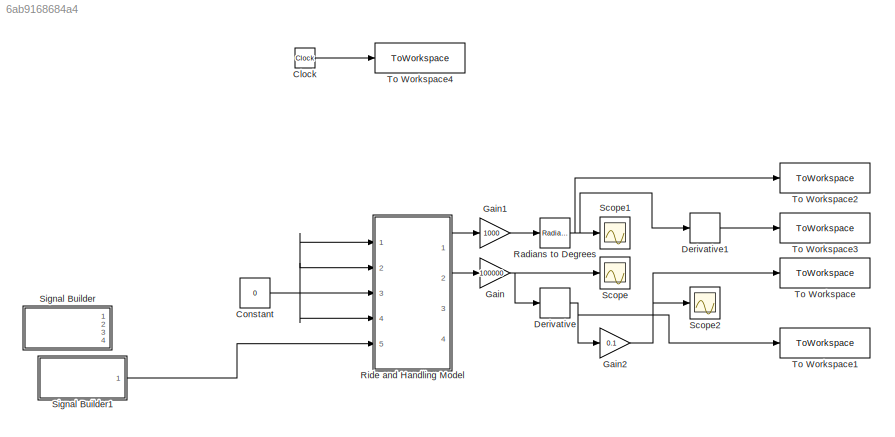
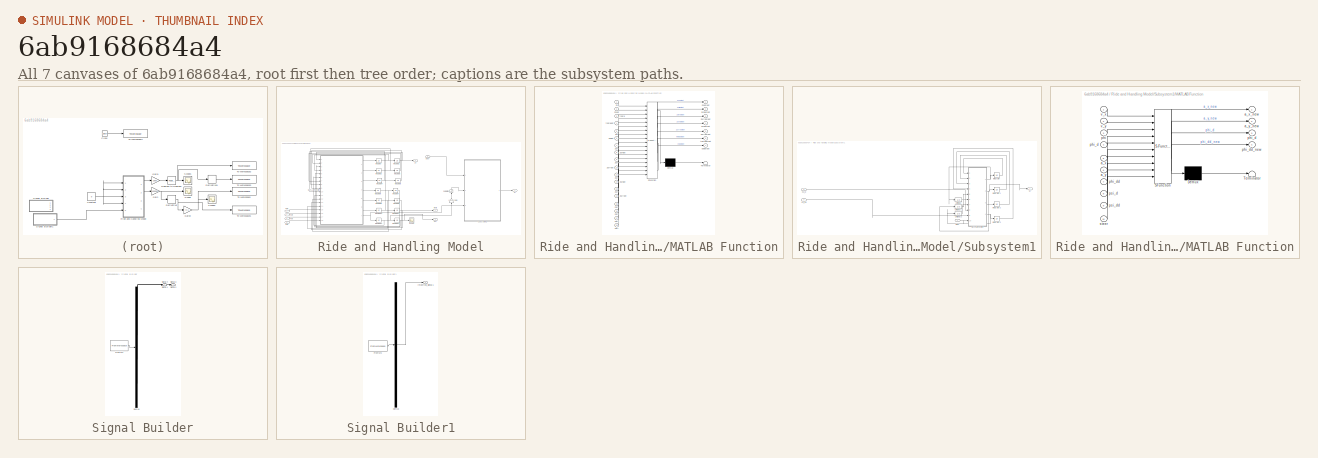
[diagram: thumbnail index - all 7 canvases of the model, root first then tree order]
MODEL slx_6ab9168684a4
KIND model
CONFIG AbsTol = auto
CONFIG EnableMultiTasking = off
CONFIG FixedStep = auto
CONFIG MaxStep = auto
CONFIG MinStep = auto
CONFIG RelTol = 1e-3
CONFIG SampleTimeConstraint = Unconstrained
CONFIG SolverName = VariableStepAuto
CONFIG StartTime = 0.0
CONFIG StopTime = 10.0
BLOCK [Clock] Clock
BLOCK [Constant] Constant
  Value = 0
BLOCK [Derivative] Derivative
BLOCK [Derivative] Derivative1
BLOCK [Gain] Gain
  Gain = 100000
BLOCK [Gain] Gain1
  Gain = 1000
BLOCK [Gain] Gain2
  Gain = 0.1
BLOCK [Reference] Radians to Degrees  REF=simulink_extras/Transformations/Radians
to Degrees
  Ports = [1, 1]
  SourceBlock = simulink_extras/Transformations/Radians\nto Degrees
  SourceProductBaseCode = SL
  SourceType = RadiansToDegrees
BLOCK [SubSystem] Ride and Handling Model
  Ports = [5, 4]
  RequestExecContextInheritance = off
BLOCK [Inport] Ride and Handling Model/Fpfl
BLOCK [Inport] Ride and Handling Model/Fpfr
  Port = 3
BLOCK [Inport] Ride and Handling Model/Fprl
  Port = 2
BLOCK [Inport] Ride and Handling Model/Fprr
  Port = 4
BLOCK [Gain] Ride and Handling Model/Gain
  Gain = 100000
  NameLocation = right
BLOCK [Integrator] Ride and Handling Model/Integrator
  InitialCondition = 0.0001
  Ports = [1, 1]
BLOCK [Integrator] Ride and Handling Model/Integrator1
  InitialCondition = 0.0001
  Ports = [1, 1]
BLOCK [Integrator] Ride and Handling Model/Integrator10
  InitialCondition = 0.0001
  Ports = [1, 1]
BLOCK [Integrator] Ride and Handling Model/Integrator11
  InitialCondition = 0.0001
  Ports = [1, 1]
BLOCK [Integrator] Ride and Handling Model/Integrator12
  InitialCondition = 0.0001
  Ports = [1, 1]
BLOCK [Integrator] Ride and Handling Model/Integrator13
  InitialCondition = 0.0001
  Ports = [1, 1]
BLOCK [Integrator] Ride and Handling Model/Integrator2
  InitialCondition = 0.0001
  Ports = [1, 1]
BLOCK [Integrator] Ride and Handling Model/Integrator3
  InitialCondition = 0.0001
  Ports = [1, 1]
BLOCK [Integrator] Ride and Handling Model/Integrator4
  InitialCondition = 0.0001
  Ports = [1, 1]
BLOCK [Integrator] Ride and Handling Model/Integrator5
  InitialCondition = 0.0001
  Ports = [1, 1]
BLOCK [Integrator] Ride and Handling Model/Integrator6
  InitialCondition = 0.0001
  Ports = [1, 1]
BLOCK [Integrator] Ride and Handling Model/Integrator7
  InitialCondition = 0.0001
  Ports = [1, 1]
BLOCK [Integrator] Ride and Handling Model/Integrator8
  InitialCondition = 0.0001
  Ports = [1, 1]
BLOCK [Integrator] Ride and Handling Model/Integrator9
  InitialCondition = 0.0001
  Ports = [1, 1]
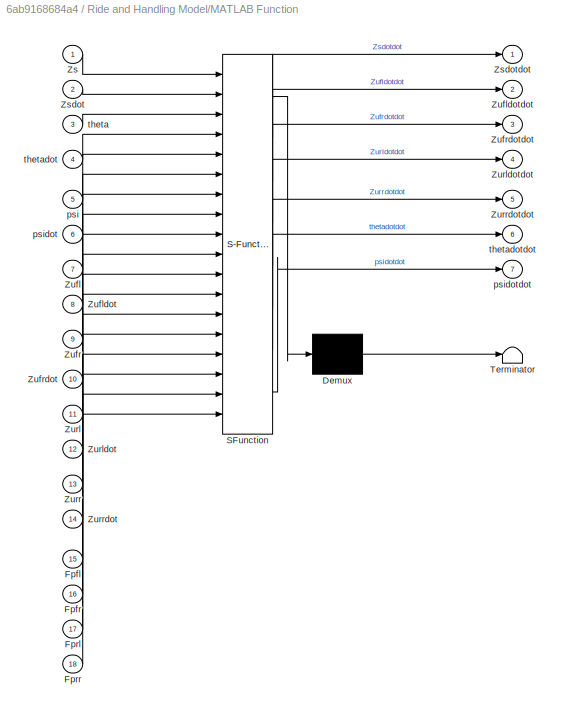
BLOCK [SubSystem] Ride and Handling Model/MATLAB Function
  ErrorFcn = Stateflow.Translate.translate
  PermitHierarchicalResolution = ExplicitOnly
  Ports = [18, 7]
  RequestExecContextInheritance = off
  SFBlockType = MATLAB Function
  TreatAsAtomicUnit = on
BLOCK [Demux] Ride and Handling Model/MATLAB Function/ Demux 
  Outputs = 1
  Ports = [1, 1]
BLOCK [S-Function] Ride and Handling Model/MATLAB Function/ SFunction 
  EnableBusSupport = on
  FunctionName = sf_sfun
  PortCounts = [18 8]
  Ports = [18, 8]
  SFcnIsStateOwnerBlock = off
  SFunctionDeploymentMode = off
  Tag = Stateflow S-Function 2
BLOCK [Terminator] Ride and Handling Model/MATLAB Function/ Terminator 
BLOCK [Inport] Ride and Handling Model/MATLAB Function/Fpfl
  Port = 15
BLOCK [Inport] Ride and Handling Model/MATLAB Function/Fpfr
  Port = 16
BLOCK [Inport] Ride and Handling Model/MATLAB Function/Fprl
  Port = 17
BLOCK [Inport] Ride and Handling Model/MATLAB Function/Fprr
  Port = 18
BLOCK [Inport] Ride and Handling Model/MATLAB Function/Zs
BLOCK [Inport] Ride and Handling Model/MATLAB Function/Zsdot
  Port = 2
BLOCK [Outport] Ride and Handling Model/MATLAB Function/Zsdotdot
BLOCK [Inport] Ride and Handling Model/MATLAB Function/Zufl
  Port = 7
BLOCK [Inport] Ride and Handling Model/MATLAB Function/Zufldot
  Port = 8
BLOCK [Outport] Ride and Handling Model/MATLAB Function/Zufldotdot
  Port = 2
BLOCK [Inport] Ride and Handling Model/MATLAB Function/Zufr
  Port = 9
BLOCK [Inport] Ride and Handling Model/MATLAB Function/Zufrdot
  Port = 10
BLOCK [Outport] Ride and Handling Model/MATLAB Function/Zufrdotdot
  Port = 3
BLOCK [Inport] Ride and Handling Model/MATLAB Function/Zurl
  Port = 11
BLOCK [Inport] Ride and Handling Model/MATLAB Function/Zurldot
  Port = 12
BLOCK [Outport] Ride and Handling Model/MATLAB Function/Zurldotdot
  Port = 4
BLOCK [Inport] Ride and Handling Model/MATLAB Function/Zurr
  Port = 13
BLOCK [Inport] Ride and Handling Model/MATLAB Function/Zurrdot
  Port = 14
BLOCK [Outport] Ride and Handling Model/MATLAB Function/Zurrdotdot
  Port = 5
BLOCK [Inport] Ride and Handling Model/MATLAB Function/psi
  Port = 5
BLOCK [Inport] Ride and Handling Model/MATLAB Function/psidot
  Port = 6
BLOCK [Outport] Ride and Handling Model/MATLAB Function/psidotdot
  Port = 7
BLOCK [Inport] Ride and Handling Model/MATLAB Function/theta
  Port = 3
BLOCK [Inport] Ride and Handling Model/MATLAB Function/thetadot
  Port = 4
BLOCK [Outport] Ride and Handling Model/MATLAB Function/thetadotdot
  Port = 6
BLOCK [Saturate] Ride and Handling Model/Saturation
  LowerLimit = -1
  NameLocation = right
  UpperLimit = 10
BLOCK [Scope] Ride and Handling Model/Scope
  Floating = off
  NumInputPorts = 1
  Ports = [1]
  ScopeSpecificationString = Simulink.scopes.TimeScopeBlockCfg('CurrentConfiguration', extmgr.ConfigurationSet(extmgr.Configuration('Core','General UI',true),extmgr.Configuration('Core','Source UI',true),extmgr.Configuration('Sources','WiredSimulink',true),extmgr.Configuration('Visuals','Time Domain',true,'SerializedDisplays',{struct('MinYLimReal','-0.48113','MaxYLimReal','0.65572','YLabelReal','','MinYLimMag','0.00000','MaxY...<+1357ch>
BLOCK [SubSystem] Ride and Handling Model/Subsystem1
  Ports = [3, 1]
  RequestExecContextInheritance = off
BLOCK [Integrator] Ride and Handling Model/Subsystem1/Integrator
  InitialCondition = 0.0001
  Ports = [1, 1]
BLOCK [Integrator] Ride and Handling Model/Subsystem1/Integrator1
  InitialCondition = 0.0001
  Ports = [1, 1]
BLOCK [Integrator] Ride and Handling Model/Subsystem1/Integrator2
  InitialCondition = 0.0001
  Ports = [1, 1]
BLOCK [Integrator] Ride and Handling Model/Subsystem1/Integrator3
  InitialCondition = 0.0001
  Ports = [1, 1]
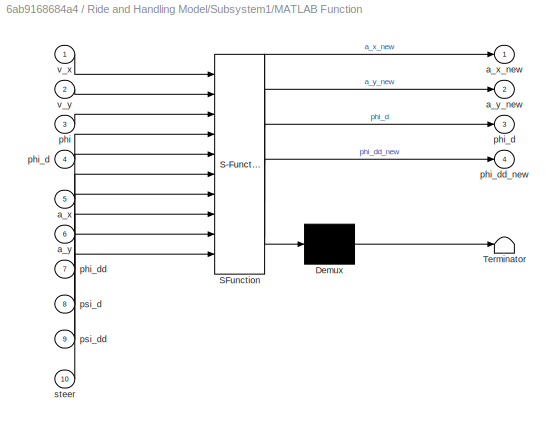
BLOCK [SubSystem] Ride and Handling Model/Subsystem1/MATLAB Function
  ErrorFcn = Stateflow.Translate.translate
  PermitHierarchicalResolution = ExplicitOnly
  Ports = [10, 4]
  RequestExecContextInheritance = off
  SFBlockType = MATLAB Function
  TreatAsAtomicUnit = on
BLOCK [Demux] Ride and Handling Model/Subsystem1/MATLAB Function/ Demux 
  Outputs = 1
  Ports = [1, 1]
BLOCK [S-Function] Ride and Handling Model/Subsystem1/MATLAB Function/ SFunction 
  EnableBusSupport = on
  FunctionName = sf_sfun
  PortCounts = [10 5]
  Ports = [10, 5]
  SFcnIsStateOwnerBlock = off
  SFunctionDeploymentMode = off
  Tag = Stateflow S-Function 4
BLOCK [Terminator] Ride and Handling Model/Subsystem1/MATLAB Function/ Terminator 
BLOCK [Inport] Ride and Handling Model/Subsystem1/MATLAB Function/a_x
  Port = 5
BLOCK [Outport] Ride and Handling Model/Subsystem1/MATLAB Function/a_x_new
BLOCK [Inport] Ride and Handling Model/Subsystem1/MATLAB Function/a_y
  Port = 6
BLOCK [Outport] Ride and Handling Model/Subsystem1/MATLAB Function/a_y_new
  Port = 2
BLOCK [Inport] Ride and Handling Model/Subsystem1/MATLAB Function/phi
  Port = 3
BLOCK [Outport] Ride and Handling Model/Subsystem1/MATLAB Function/phi_d
  Port = 3
BLOCK [Inport] Ride and Handling Model/Subsystem1/MATLAB Function/phi_d 
  Port = 4
BLOCK [Inport] Ride and Handling Model/Subsystem1/MATLAB Function/phi_dd
  Port = 7
BLOCK [Outport] Ride and Handling Model/Subsystem1/MATLAB Function/phi_dd_new
  Port = 4
BLOCK [Inport] Ride and Handling Model/Subsystem1/MATLAB Function/psi_d
  Port = 8
BLOCK [Inport] Ride and Handling Model/Subsystem1/MATLAB Function/psi_dd
  Port = 9
BLOCK [Inport] Ride and Handling Model/Subsystem1/MATLAB Function/steer
  Port = 10
BLOCK [Inport] Ride and Handling Model/Subsystem1/MATLAB Function/v_x
BLOCK [Inport] Ride and Handling Model/Subsystem1/MATLAB Function/v_y
  Port = 2
BLOCK [UnitDelay] Ride and Handling Model/Subsystem1/Unit Delay
  HasFrameUpgradeWarning = on
  SampleTime = -1
BLOCK [UnitDelay] Ride and Handling Model/Subsystem1/Unit Delay1
  HasFrameUpgradeWarning = on
  SampleTime = -1
BLOCK [UnitDelay] Ride and Handling Model/Subsystem1/Unit Delay2
  HasFrameUpgradeWarning = on
  SampleTime = -1
BLOCK [Outport] Ride and Handling Model/Subsystem1/ay
BLOCK [Inport] Ride and Handling Model/Subsystem1/psi_d
  Port = 2
BLOCK [Inport] Ride and Handling Model/Subsystem1/psi_dd
  Port = 3
BLOCK [Inport] Ride and Handling Model/Subsystem1/steer
BLOCK [Outport] Ride and Handling Model/Zs
  Port = 4
BLOCK [Outport] Ride and Handling Model/ay
  Port = 3
BLOCK [Outport] Ride and Handling Model/psi
  Port = 2
BLOCK [Inport] Ride and Handling Model/steer
  Port = 5
BLOCK [Outport] Ride and Handling Model/theta
BLOCK [Scope] Scope
  Floating = off
  NumInputPorts = 1
  Ports = [1]
  ScopeSpecificationString = Simulink.scopes.TimeScopeBlockCfg('CurrentConfiguration', extmgr.ConfigurationSet(extmgr.Configuration('Core','General UI',true),extmgr.Configuration('Core','Source UI',true),extmgr.Configuration('Sources','WiredSimulink',true,'DataLoggingVariableName','ScopeData1'),extmgr.Configuration('Visuals','Time Domain',true,'SerializedDisplays',{struct('MinYLimReal','-6.29966','MaxYLimReal','11.84491','YLa...<+1396ch>
BLOCK [Scope] Scope1
  Floating = off
  NumInputPorts = 1
  Ports = [1]
  ScopeSpecificationString = Simulink.scopes.TimeScopeBlockCfg('CurrentConfiguration', extmgr.ConfigurationSet(extmgr.Configuration('Core','General UI',true),extmgr.Configuration('Core','Source UI',true),extmgr.Configuration('Sources','WiredSimulink',true,'DataLoggingVariableName','ScopeData2'),extmgr.Configuration('Visuals','Time Domain',true,'SerializedDisplays',{struct('MinYLimReal','-5.93913','MaxYLimReal','7.06003','YLab...<+1406ch>
BLOCK [Scope] Scope2
  Floating = off
  NumInputPorts = 1
  Ports = [1]
  ScopeSpecificationString = Simulink.scopes.TimeScopeBlockCfg('CurrentConfiguration', extmgr.ConfigurationSet(extmgr.Configuration('Core','General UI',true),extmgr.Configuration('Core','Source UI',true),extmgr.Configuration('Sources','WiredSimulink',true,'DataLoggingVariableName','ScopeData3'),extmgr.Configuration('Visuals','Time Domain',true,'SerializedDisplays',{struct('MinYLimReal','-11.1759','MaxYLimReal','5.87301','YLab...<+1393ch>
BLOCK [SubSystem] Signal Builder
  ClipboardFcn = sigbuilder_block('clipboard');
  CloseFcn = sigbuilder_block('close');
  ContinueFcn = sigbuilder_block('continue');
  CopyFcn = sigbuilder_block('copy');
  DeleteFcn = sigbuilder_block('delete');
  LoadFcn = sigbuilder_block('load');
  MaskHideContents = on
  ModelCloseFcn = sigbuilder_block('modelClose');
  NameChangeFcn = sigbuilder_block('namechange');
  OpenFcn = sigbuilder_block('open',[5.4 36 1141.2 516.6 ]);
  PauseFcn = sigbuilder_block('pause');
  Ports = [0, 4]
  PreSaveFcn = sigbuilder_block('preSave');
  RequestExecContextInheritance = off
  StartFcn = sigbuilder_block('start');
  StopFcn = sigbuilder_block('stop');
  Tag = STV Subsys
BLOCK [Demux] Signal Builder/Demux
  DisplayOption = none
  Ports = [1, 4]
  Tag = STV Demux
BLOCK [FromWorkspace] Signal Builder/FromWs
  Tag = STV FromWs
  VariableName = tuvar
BLOCK [Outport] Signal Builder/Signal 1
  Tag = STV Outport
BLOCK [Outport] Signal Builder/Signal 2
  Port = 2
  Tag = STV Outport
BLOCK [Outport] Signal Builder/Signal 3
  Port = 3
  Tag = STV Outport
BLOCK [Outport] Signal Builder/Signal 4
  Port = 4
  Tag = STV Outport
BLOCK [SubSystem] Signal Builder1
  ClipboardFcn = sigbuilder_block('clipboard');
  CloseFcn = sigbuilder_block('close');
  ContinueFcn = sigbuilder_block('continue');
  CopyFcn = sigbuilder_block('copy');
  DeleteFcn = sigbuilder_block('delete');
  LoadFcn = sigbuilder_block('load');
  MaskHideContents = on
  ModelCloseFcn = sigbuilder_block('modelClose');
  NameChangeFcn = sigbuilder_block('namechange');
  OpenFcn = sigbuilder_block('open',[405.6 130.2 550.8 400.2 ]);
  PauseFcn = sigbuilder_block('pause');
  Ports = [0, 1]
  PreSaveFcn = sigbuilder_block('preSave');
  RequestExecContextInheritance = off
  StartFcn = sigbuilder_block('start');
  StopFcn = sigbuilder_block('stop');
  Tag = STV Subsys
BLOCK [Demux] Signal Builder1/Demux
  DisplayOption = none
  Outputs = 1
  Ports = [1, 1]
  Tag = STV Demux
BLOCK [FromWorkspace] Signal Builder1/FromWs
  Tag = STV FromWs
  VariableName = tuvar
BLOCK [Outport] Signal Builder1/Imported_Signal 1
  Tag = STV Outport
BLOCK [ToWorkspace] To Workspace
  FixptAsFi = on
  MaxDataPoints = inf
  Ports = [1]
  SampleTime = -1
  SaveFormat = Timeseries
  VariableName = roll
BLOCK [ToWorkspace] To Workspace1
  FixptAsFi = on
  MaxDataPoints = inf
  Ports = [1]
  SampleTime = -1
  SaveFormat = Timeseries
  VariableName = rollrate
BLOCK [ToWorkspace] To Workspace2
  FixptAsFi = on
  MaxDataPoints = inf
  Ports = [1]
  SampleTime = -1
  SaveFormat = Timeseries
  VariableName = pitch
BLOCK [ToWorkspace] To Workspace3
  FixptAsFi = on
  MaxDataPoints = inf
  Ports = [1]
  SampleTime = -1
  SaveFormat = Timeseries
  VariableName = pitchrate
BLOCK [ToWorkspace] To Workspace4
  FixptAsFi = on
  MaxDataPoints = inf
  Ports = [1]
  SampleTime = -1
  SaveFormat = Timeseries
  VariableName = time1
LINE Clock:1 -> To Workspace4:1
NET Constant:1 -> Ride and Handling Model:1, Ride and Handling Model:2, Ride and Handling Model:3, Ride and Handling Model:4
LINE Derivative1:1 -> To Workspace3:1
NET Derivative:1 -> Gain2:1, To Workspace1:1
LINE Gain1:1 -> Radians to Degrees:1
NET Gain2:1 -> Scope2:1, To Workspace:1
NET Gain:1 -> Derivative:1, Scope:1
NET Radians to Degrees:1 -> Derivative1:1, Scope1:1, To Workspace2:1
LINE Ride and Handling Model/Fpfl:1 -> Ride and Handling Model/MATLAB Function:15
LINE Ride and Handling Model/Fpfr:1 -> Ride and Handling Model/MATLAB Function:16
LINE Ride and Handling Model/Fprl:1 -> Ride and Handling Model/MATLAB Function:17
LINE Ride and Handling Model/Fprr:1 -> Ride and Handling Model/MATLAB Function:18
LINE Ride and Handling Model/Gain:1 -> Ride and Handling Model/Saturation:1
NET Ride and Handling Model/Integrator10:1 -> Ride and Handling Model/Integrator11:1, Ride and Handling Model/MATLAB Function:4
NET Ride and Handling Model/Integrator11:1 -> Ride and Handling Model/MATLAB Function:3, Ride and Handling Model/theta:1
NET Ride and Handling Model/Integrator12:1 -> Ride and Handling Model/Gain:1, Ride and Handling Model/Integrator13:1, Ride and Handling Model/MATLAB Function:6
NET Ride and Handling Model/Integrator13:1 -> Ride and Handling Model/MATLAB Function:5, Ride and Handling Model/Scope:1, Ride and Handling Model/psi:1
NET Ride and Handling Model/Integrator1:1 -> Ride and Handling Model/MATLAB Function:1, Ride and Handling Model/Zs:1
NET Ride and Handling Model/Integrator2:1 -> Ride and Handling Model/Integrator3:1, Ride and Handling Model/MATLAB Function:8
LINE Ride and Handling Model/Integrator3:1 -> Ride and Handling Model/MATLAB Function:7
NET Ride and Handling Model/Integrator4:1 -> Ride and Handling Model/Integrator5:1, Ride and Handling Model/MATLAB Function:10
LINE Ride and Handling Model/Integrator5:1 -> Ride and Handling Model/MATLAB Function:9
NET Ride and Handling Model/Integrator6:1 -> Ride and Handling Model/Integrator7:1, Ride and Handling Model/MATLAB Function:12
LINE Ride and Handling Model/Integrator7:1 -> Ride and Handling Model/MATLAB Function:11
NET Ride and Handling Model/Integrator8:1 -> Ride and Handling Model/Integrator9:1, Ride and Handling Model/MATLAB Function:14
LINE Ride and Handling Model/Integrator9:1 -> Ride and Handling Model/MATLAB Function:13
NET Ride and Handling Model/Integrator:1 -> Ride and Handling Model/Integrator1:1, Ride and Handling Model/MATLAB Function:2
LINE Ride and Handling Model/MATLAB Function:1 -> Ride and Handling Model/Integrator:1
LINE Ride and Handling Model/MATLAB Function:2 -> Ride and Handling Model/Integrator2:1
LINE Ride and Handling Model/MATLAB Function:3 -> Ride and Handling Model/Integrator4:1
LINE Ride and Handling Model/MATLAB Function:4 -> Ride and Handling Model/Integrator6:1
LINE Ride and Handling Model/MATLAB Function:5 -> Ride and Handling Model/Integrator8:1
LINE Ride and Handling Model/MATLAB Function:6 -> Ride and Handling Model/Integrator10:1
NET Ride and Handling Model/MATLAB Function:7 -> Ride and Handling Model/Integrator12:1, Ride and Handling Model/Subsystem1:3
LINE Ride and Handling Model/Saturation:1 -> Ride and Handling Model/Subsystem1:2
LINE Ride and Handling Model/Subsystem1/Integrator1:1 -> Ride and Handling Model/Subsystem1/MATLAB Function:2
LINE Ride and Handling Model/Subsystem1/Integrator2:1 -> Ride and Handling Model/Subsystem1/MATLAB Function:3
LINE Ride and Handling Model/Subsystem1/Integrator3:1 -> Ride and Handling Model/Subsystem1/MATLAB Function:4
LINE Ride and Handling Model/Subsystem1/Integrator:1 -> Ride and Handling Model/Subsystem1/MATLAB Function:1
NET Ride and Handling Model/Subsystem1/MATLAB Function:1 -> Ride and Handling Model/Subsystem1/Integrator:1, Ride and Handling Model/Subsystem1/Unit Delay:1
NET Ride and Handling Model/Subsystem1/MATLAB Function:2 -> Ride and Handling Model/Subsystem1/Integrator1:1, Ride and Handling Model/Subsystem1/Unit Delay1:1, Ride and Handling Model/Subsystem1/ay:1
LINE Ride and Handling Model/Subsystem1/MATLAB Function:3 -> Ride and Handling Model/Subsystem1/Integrator2:1
NET Ride and Handling Model/Subsystem1/MATLAB Function:4 -> Ride and Handling Model/Subsystem1/Integrator3:1, Ride and Handling Model/Subsystem1/Unit Delay2:1
LINE Ride and Handling Model/Subsystem1/Unit Delay1:1 -> Ride and Handling Model/Subsystem1/MATLAB Function:6
LINE Ride and Handling Model/Subsystem1/Unit Delay2:1 -> Ride and Handling Model/Subsystem1/MATLAB Function:7
LINE Ride and Handling Model/Subsystem1/Unit Delay:1 -> Ride and Handling Model/Subsystem1/MATLAB Function:5
LINE Ride and Handling Model/Subsystem1/psi_d:1 -> Ride and Handling Model/Subsystem1/MATLAB Function:8
LINE Ride and Handling Model/Subsystem1/psi_dd:1 -> Ride and Handling Model/Subsystem1/MATLAB Function:9
LINE Ride and Handling Model/Subsystem1/steer:1 -> Ride and Handling Model/Subsystem1/MATLAB Function:10
LINE Ride and Handling Model/Subsystem1:1 -> Ride and Handling Model/ay:1
LINE Ride and Handling Model/steer:1 -> Ride and Handling Model/Subsystem1:1
LINE Ride and Handling Model:1 -> Gain1:1
LINE Ride and Handling Model:2 -> Gain:1
LINE Signal Builder1:1 -> Ride and Handling Model:5
note: NET lines group one-source signal fan-out (src -> all destinations, sorted); 1:1 wires keep LINE
CHART Ride and Handling Model/MATLAB Function states=1 transitions=1
  STATE_LABEL 'eML_blk_kernel()'
  STATE_LABEL 'SCRIPT:\nfunction [Zsdotdot,Zufldotdot, Zufrdotdot, Zurldotdot, Zurrdotdot, thetadotdot, psidotdot] = ...\n    fcn(Zs,Zsdot,theta,thetadot,psi,psidot,Zufl,Zufldot,Zufr, Zufrdot,Zurl, Zurldot,...\n    Zurr, Zurrdot,Fpfl,Fpfr,Fprl,Fprr)\n\nIyy = 2498.900;\nIxx = 440.911;\nw = 1.54;\nKsf = 30000; %N/mm\nKsr = 30000; %N/mm\nCsf = 750;\nCsr = 750;\nlf = 1.01476;\nlr = 1.67524;\nM = 1704;\nM_uf = 98.1;\nM_ur = 79.7;\ng ...<+1702ch>'
CHART Ride and Handling Model/Subsystem1/MATLAB Function states=1 transitions=1
  STATE_LABEL 'eML_blk_kernel()'
  STATE_LABEL 'SCRIPT:\nfunction [a_x_new, a_y_new, phi_d, phi_dd_new] = ...\n    fcn(v_x, v_y,phi, phi_d,a_x,a_y,phi_dd,psi_d,psi_dd,steer)\n\n%==constants==%\ng = 9.81;\n\n%------------------%\n%Car physical variables\nl_fs = 1.01476;\nl_rs = 1.67524;\nt_f = 1.540;\nt_r = 1.530;\nh_f = 0.130;\nh_r = 0.110;\nh_cgs = 0.567851;\nh_cguf = 0.320;\nh_cgur = 0.320;\nM = 1704.7;\nM_uf = 98.1;\nM_ur = 79.7;\nI_xxs = 440.911;\nI_xys = 0;\nI_x...<+3608ch>'
CHART  states=0 transitions=0
CHART  states=0 transitions=0
